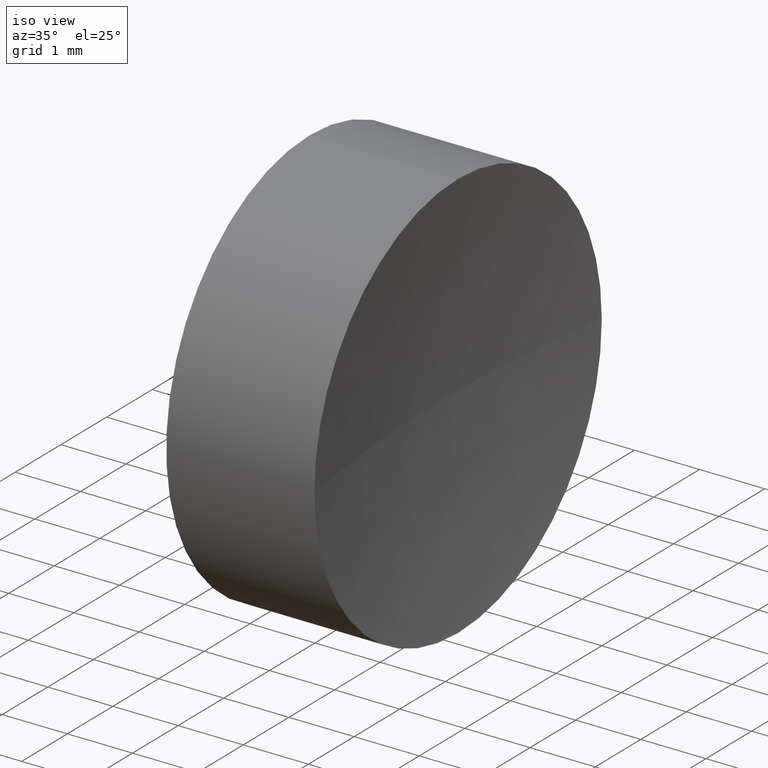
[diagram: clean part render]
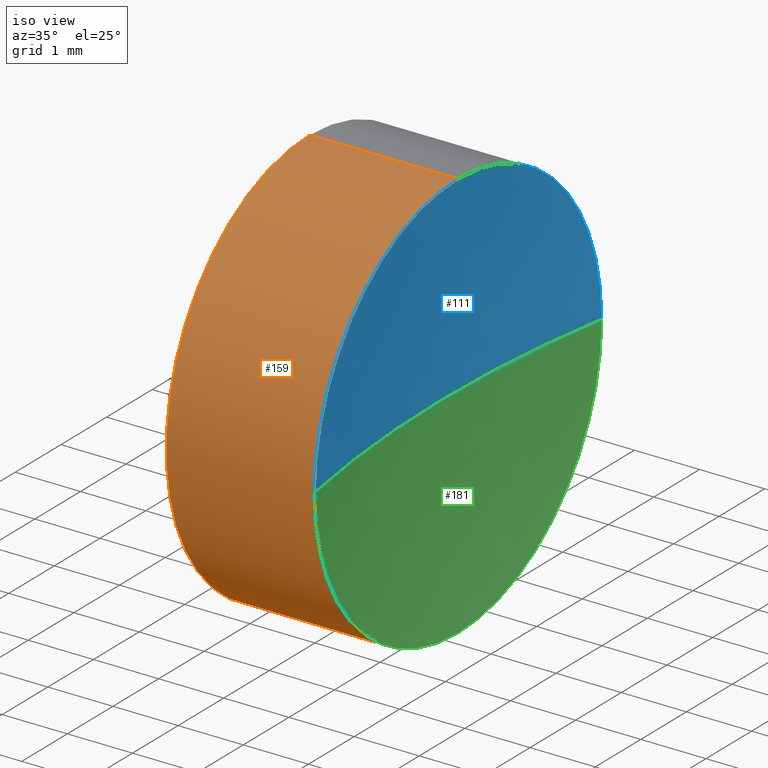
[diagram: same view with three faces highlighted in distinct colors, each labeled with its STEP entity id]
A machine part, iso view with three faces highlighted in distinct colors.
Their STEP definitions:

[orange] entity #159 — the highlighted cylindrical surface (partial cylindrical patch) has radius 3.15 mm, axis along (-1, -0, -0).
#2 = CARTESIAN_POINT ( 'NONE',  ( 21.15647192244426100, 13.03112609140304000, 3.150000000000001700 ) ) ;
#6 = EDGE_CURVE ( 'NONE', #52, #143, #66, .T. ) ;
#7 = CARTESIAN_POINT ( 'NONE',  ( 22.20087548928661300, 13.03112609140304000, 3.149999999999998100 ) ) ;
#12 = CIRCLE ( 'NONE', #109, 3.150000000000005200 ) ;
#18 = AXIS2_PLACEMENT_3D ( 'NONE', #51, #63, #118 ) ;
#21 = DIRECTION ( 'NONE',  ( -1.000000000000000000, -0.0000000000000000000, -0.0000000000000000000 ) ) ;
#23 = CARTESIAN_POINT ( 'NONE',  ( 24.47341578959445800, 13.03112609140304000, 3.150000000000005200 ) ) ;
#31 = EDGE_CURVE ( 'NONE', #42, #143, #75, .T. ) ;
#35 = DIRECTION ( 'NONE',  ( -1.000000000000000000, -0.0000000000000000000, -0.0000000000000000000 ) ) ;
#36 = VERTEX_POINT ( 'NONE', #113 ) ;
#37 = CARTESIAN_POINT ( 'NONE',  ( 24.47341578959445800, 13.03112609140304000, 0.0000000000000000000 ) ) ;
#38 = VECTOR ( 'NONE', #180, 1000.000000000000000 ) ;
#39 = CARTESIAN_POINT ( 'NONE',  ( 22.20087548928661300, 13.03112609140304000, 0.0000000000000000000 ) ) ;
#42 = VERTEX_POINT ( 'NONE', #23 ) ;
#45 = ORIENTED_EDGE ( 'NONE', *, *, #80, .T. ) ;
#51 = CARTESIAN_POINT ( 'NONE',  ( 24.47341578959445800, 13.03112609140304000, 0.0000000000000000000 ) ) ;
#52 = VERTEX_POINT ( 'NONE', #61 ) ;
#56 = ORIENTED_EDGE ( 'NONE', *, *, #31, .T. ) ;
#61 = CARTESIAN_POINT ( 'NONE',  ( 22.20087548928661300, 13.03112609140304000, -3.149999999999998100 ) ) ;
#63 = DIRECTION ( 'NONE',  ( -1.000000000000000000, -0.0000000000000000000, -0.0000000000000000000 ) ) ;
#66 = CIRCLE ( 'NONE', #121, 3.149999999999998100 ) ;
#70 = EDGE_CURVE ( 'NONE', #125, #52, #112, .T. ) ;
#75 = LINE ( 'NONE', #2, #38 ) ;
#76 = DIRECTION ( 'NONE',  ( -1.000000000000000000, -0.0000000000000000000, -0.0000000000000000000 ) ) ;
#80 = EDGE_CURVE ( 'NONE', #36, #42, #12, .T. ) ;
#82 = EDGE_LOOP ( 'NONE', ( #158, #87, #45, #56, #184 ) ) ;
#87 = ORIENTED_EDGE ( 'NONE', *, *, #92, .T. ) ;
#92 = EDGE_CURVE ( 'NONE', #125, #36, #171, .T. ) ;
#93 = CARTESIAN_POINT ( 'NONE',  ( 21.15647192244426100, 13.03112609140304000, -3.150000000000001700 ) ) ;
#101 = FACE_OUTER_BOUND ( 'NONE', #82, .T. ) ;
#106 = CARTESIAN_POINT ( 'NONE',  ( 21.15647192244426100, 13.03112609140304000, 0.0000000000000000000 ) ) ;
#109 = AXIS2_PLACEMENT_3D ( 'NONE', #37, #21, #136 ) ;
#112 = LINE ( 'NONE', #93, #175 ) ;
#113 = CARTESIAN_POINT ( 'NONE',  ( 24.47341578959445800, 9.881126091403041700, 0.0000000000000000000 ) ) ;
#118 = DIRECTION ( 'NONE',  ( 0.0000000000000000000, 0.0000000000000000000, 1.000000000000000000 ) ) ;
#121 = AXIS2_PLACEMENT_3D ( 'NONE', #39, #76, #123 ) ;
#123 = DIRECTION ( 'NONE',  ( 0.0000000000000000000, 0.0000000000000000000, 1.000000000000000000 ) ) ;
#125 = VERTEX_POINT ( 'NONE', #150 ) ;
#136 = DIRECTION ( 'NONE',  ( 0.0000000000000000000, 0.0000000000000000000, 1.000000000000000000 ) ) ;
#143 = VERTEX_POINT ( 'NONE', #7 ) ;
#150 = CARTESIAN_POINT ( 'NONE',  ( 24.47341578959445800, 13.03112609140304000, -3.150000000000005200 ) ) ;
#155 = DIRECTION ( 'NONE',  ( 0.0000000000000000000, 0.0000000000000000000, 1.000000000000000000 ) ) ;
#156 = DIRECTION ( 'NONE',  ( -1.000000000000000000, -0.0000000000000000000, -0.0000000000000000000 ) ) ;
#158 = ORIENTED_EDGE ( 'NONE', *, *, #70, .F. ) ;
#159 = ADVANCED_FACE ( 'NONE', ( #101 ), #172, .T. ) ;
#171 = CIRCLE ( 'NONE', #18, 3.150000000000005200 ) ;
#172 = CYLINDRICAL_SURFACE ( 'NONE', #176, 3.150000000000001700 ) ;
#175 = VECTOR ( 'NONE', #35, 1000.000000000000000 ) ;
#176 = AXIS2_PLACEMENT_3D ( 'NONE', #106, #156, #155 ) ;
#180 = DIRECTION ( 'NONE',  ( -1.000000000000000000, -0.0000000000000000000, -0.0000000000000000000 ) ) ;
#184 = ORIENTED_EDGE ( 'NONE', *, *, #6, .F. ) ;

[blue] entity #111 — the highlighted spherical surface has radius 18.34 mm.
#11 = ORIENTED_EDGE ( 'NONE', *, *, #151, .F. ) ;
#12 = CIRCLE ( 'NONE', #109, 3.150000000000005200 ) ;
#21 = DIRECTION ( 'NONE',  ( -1.000000000000000000, -0.0000000000000000000, -0.0000000000000000000 ) ) ;
#23 = CARTESIAN_POINT ( 'NONE',  ( 24.47341578959445800, 13.03112609140304000, 3.150000000000005200 ) ) ;
#24 = CARTESIAN_POINT ( 'NONE',  ( 24.47341578959445800, 13.03112609140304000, 0.0000000000000000000 ) ) ;
#25 = VERTEX_POINT ( 'NONE', #59 ) ;
#27 = VERTEX_POINT ( 'NONE', #98 ) ;
#34 = EDGE_CURVE ( 'NONE', #27, #25, #144, .T. ) ;
#36 = VERTEX_POINT ( 'NONE', #113 ) ;
#37 = CARTESIAN_POINT ( 'NONE',  ( 24.47341578959445800, 13.03112609140304000, 0.0000000000000000000 ) ) ;
#41 = DIRECTION ( 'NONE',  ( -1.000000000000000000, 0.0000000000000000000, 0.0000000000000000000 ) ) ;
#42 = VERTEX_POINT ( 'NONE', #23 ) ;
#44 = AXIS2_PLACEMENT_3D ( 'NONE', #165, #141, #183 ) ;
#59 = CARTESIAN_POINT ( 'NONE',  ( 24.20087548928660900, 13.03112609140305800, 0.0000000000000000000 ) ) ;
#60 = ORIENTED_EDGE ( 'NONE', *, *, #80, .F. ) ;
#62 = CIRCLE ( 'NONE', #91, 3.150000000000005200 ) ;
#80 = EDGE_CURVE ( 'NONE', #36, #42, #12, .T. ) ;
#81 = DIRECTION ( 'NONE',  ( 0.0000000000000000000, 0.0000000000000000000, -1.000000000000000000 ) ) ;
#91 = AXIS2_PLACEMENT_3D ( 'NONE', #24, #129, #128 ) ;
#98 = CARTESIAN_POINT ( 'NONE',  ( 24.47341578959445800, 16.18112609140305500, 3.857637417314159200E-016 ) ) ;
#108 = ORIENTED_EDGE ( 'NONE', *, *, #34, .F. ) ;
#109 = AXIS2_PLACEMENT_3D ( 'NONE', #37, #21, #136 ) ;
#110 = CIRCLE ( 'NONE', #131, 18.34000000000001100 ) ;
#111 = ADVANCED_FACE ( 'NONE', ( #124 ), #147, .F. ) ;
#113 = CARTESIAN_POINT ( 'NONE',  ( 24.47341578959445800, 9.881126091403041700, 0.0000000000000000000 ) ) ;
#114 = AXIS2_PLACEMENT_3D ( 'NONE', #178, #174, #115 ) ;
#115 = DIRECTION ( 'NONE',  ( 0.0000000000000000000, -1.000000000000000000, -1.224646799147353200E-016 ) ) ;
#117 = CARTESIAN_POINT ( 'NONE',  ( 42.54087548928662000, 13.03112609140306000, 0.0000000000000000000 ) ) ;
#122 = EDGE_CURVE ( 'NONE', #36, #25, #110, .T. ) ;
#124 = FACE_OUTER_BOUND ( 'NONE', #162, .T. ) ;
#128 = DIRECTION ( 'NONE',  ( 0.0000000000000000000, 0.0000000000000000000, 1.000000000000000000 ) ) ;
#129 = DIRECTION ( 'NONE',  ( -1.000000000000000000, -0.0000000000000000000, -0.0000000000000000000 ) ) ;
#131 = AXIS2_PLACEMENT_3D ( 'NONE', #117, #81, #41 ) ;
#136 = DIRECTION ( 'NONE',  ( 0.0000000000000000000, 0.0000000000000000000, 1.000000000000000000 ) ) ;
#141 = DIRECTION ( 'NONE',  ( 0.0000000000000000000, 0.0000000000000000000, 1.000000000000000000 ) ) ;
#144 = CIRCLE ( 'NONE', #114, 18.34000000000001100 ) ;
#146 = ORIENTED_EDGE ( 'NONE', *, *, #122, .T. ) ;
#147 = SPHERICAL_SURFACE ( 'NONE', #44, 18.34000000000001100 ) ;
#151 = EDGE_CURVE ( 'NONE', #42, #27, #62, .T. ) ;
#162 = EDGE_LOOP ( 'NONE', ( #108, #11, #60, #146 ) ) ;
#165 = CARTESIAN_POINT ( 'NONE',  ( 42.54087548928662000, 13.03112609140306000, 0.0000000000000000000 ) ) ;
#174 = DIRECTION ( 'NONE',  ( 0.0000000000000000000, -1.224646799147353200E-016, 1.000000000000000000 ) ) ;
#178 = CARTESIAN_POINT ( 'NONE',  ( 42.54087548928662000, 13.03112609140306000, 0.0000000000000000000 ) ) ;
#183 = DIRECTION ( 'NONE',  ( 0.0000000000000000000, -1.000000000000000000, 0.0000000000000000000 ) ) ;

[green] entity #181 — the highlighted spherical surface has radius 18.34 mm.
#1 = CIRCLE ( 'NONE', #78, 3.150000000000005200 ) ;
#4 = CARTESIAN_POINT ( 'NONE',  ( 24.47341578959445800, 13.03112609140304000, 0.0000000000000000000 ) ) ;
#8 = ORIENTED_EDGE ( 'NONE', *, *, #92, .F. ) ;
#15 = DIRECTION ( 'NONE',  ( 0.0000000000000000000, -1.000000000000000000, 0.0000000000000000000 ) ) ;
#18 = AXIS2_PLACEMENT_3D ( 'NONE', #51, #63, #118 ) ;
#19 = DIRECTION ( 'NONE',  ( 0.0000000000000000000, 0.0000000000000000000, 1.000000000000000000 ) ) ;
#25 = VERTEX_POINT ( 'NONE', #59 ) ;
#27 = VERTEX_POINT ( 'NONE', #98 ) ;
#30 = SPHERICAL_SURFACE ( 'NONE', #46, 18.34000000000001100 ) ;
#34 = EDGE_CURVE ( 'NONE', #27, #25, #144, .T. ) ;
#36 = VERTEX_POINT ( 'NONE', #113 ) ;
#41 = DIRECTION ( 'NONE',  ( -1.000000000000000000, 0.0000000000000000000, 0.0000000000000000000 ) ) ;
#46 = AXIS2_PLACEMENT_3D ( 'NONE', #107, #186, #15 ) ;
#51 = CARTESIAN_POINT ( 'NONE',  ( 24.47341578959445800, 13.03112609140304000, 0.0000000000000000000 ) ) ;
#59 = CARTESIAN_POINT ( 'NONE',  ( 24.20087548928660900, 13.03112609140305800, 0.0000000000000000000 ) ) ;
#63 = DIRECTION ( 'NONE',  ( -1.000000000000000000, -0.0000000000000000000, -0.0000000000000000000 ) ) ;
#68 = EDGE_CURVE ( 'NONE', #27, #125, #1, .T. ) ;
#78 = AXIS2_PLACEMENT_3D ( 'NONE', #4, #137, #19 ) ;
#81 = DIRECTION ( 'NONE',  ( 0.0000000000000000000, 0.0000000000000000000, -1.000000000000000000 ) ) ;
#92 = EDGE_CURVE ( 'NONE', #125, #36, #171, .T. ) ;
#98 = CARTESIAN_POINT ( 'NONE',  ( 24.47341578959445800, 16.18112609140305500, 3.857637417314159200E-016 ) ) ;
#107 = CARTESIAN_POINT ( 'NONE',  ( 42.54087548928662000, 13.03112609140306000, 0.0000000000000000000 ) ) ;
#110 = CIRCLE ( 'NONE', #131, 18.34000000000001100 ) ;
#113 = CARTESIAN_POINT ( 'NONE',  ( 24.47341578959445800, 9.881126091403041700, 0.0000000000000000000 ) ) ;
#114 = AXIS2_PLACEMENT_3D ( 'NONE', #178, #174, #115 ) ;
#115 = DIRECTION ( 'NONE',  ( 0.0000000000000000000, -1.000000000000000000, -1.224646799147353200E-016 ) ) ;
#117 = CARTESIAN_POINT ( 'NONE',  ( 42.54087548928662000, 13.03112609140306000, 0.0000000000000000000 ) ) ;
#118 = DIRECTION ( 'NONE',  ( 0.0000000000000000000, 0.0000000000000000000, 1.000000000000000000 ) ) ;
#122 = EDGE_CURVE ( 'NONE', #36, #25, #110, .T. ) ;
#125 = VERTEX_POINT ( 'NONE', #150 ) ;
#131 = AXIS2_PLACEMENT_3D ( 'NONE', #117, #81, #41 ) ;
#137 = DIRECTION ( 'NONE',  ( -1.000000000000000000, -0.0000000000000000000, -0.0000000000000000000 ) ) ;
#142 = ORIENTED_EDGE ( 'NONE', *, *, #122, .F. ) ;
#144 = CIRCLE ( 'NONE', #114, 18.34000000000001100 ) ;
#148 = EDGE_LOOP ( 'NONE', ( #179, #161, #142, #8 ) ) ;
#150 = CARTESIAN_POINT ( 'NONE',  ( 24.47341578959445800, 13.03112609140304000, -3.150000000000005200 ) ) ;
#161 = ORIENTED_EDGE ( 'NONE', *, *, #34, .T. ) ;
#168 = FACE_OUTER_BOUND ( 'NONE', #148, .T. ) ;
#171 = CIRCLE ( 'NONE', #18, 3.150000000000005200 ) ;
#174 = DIRECTION ( 'NONE',  ( 0.0000000000000000000, -1.224646799147353200E-016, 1.000000000000000000 ) ) ;
#178 = CARTESIAN_POINT ( 'NONE',  ( 42.54087548928662000, 13.03112609140306000, 0.0000000000000000000 ) ) ;
#179 = ORIENTED_EDGE ( 'NONE', *, *, #68, .F. ) ;
#181 = ADVANCED_FACE ( 'NONE', ( #168 ), #30, .F. ) ;
#186 = DIRECTION ( 'NONE',  ( 0.0000000000000000000, 0.0000000000000000000, 1.000000000000000000 ) ) ;